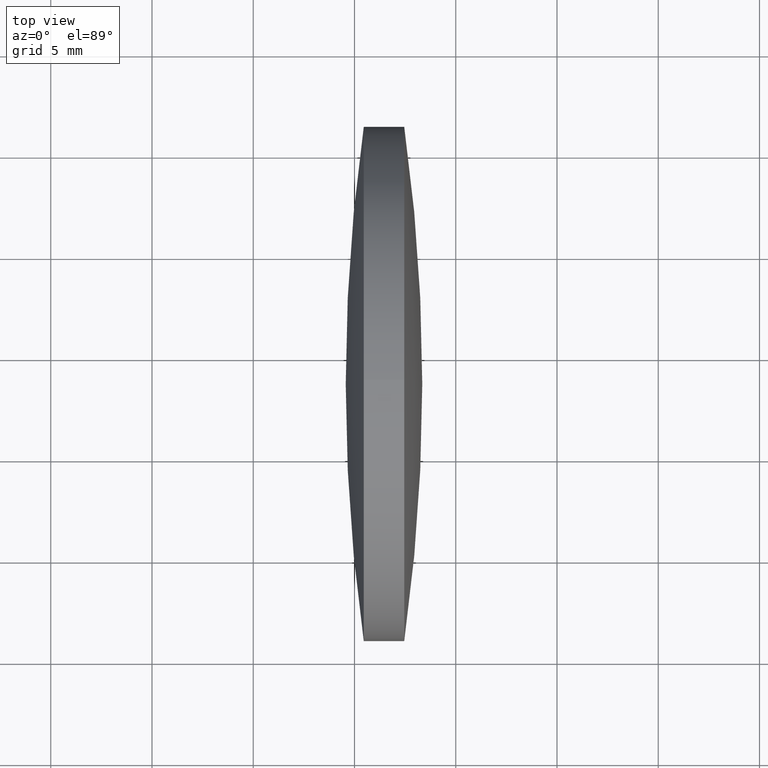
[diagram: clean part render]
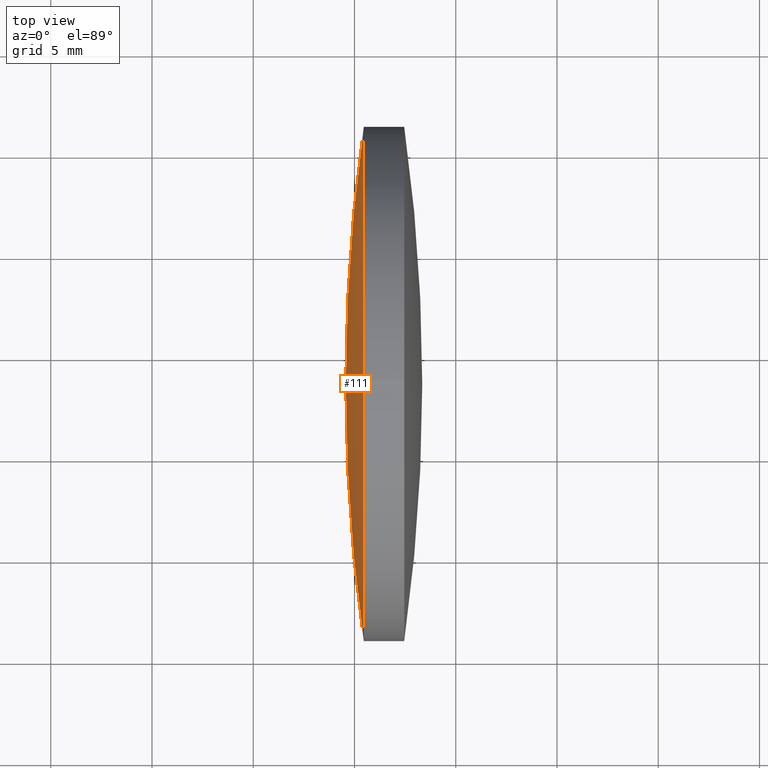
[diagram: same view with one face highlighted and labeled with its STEP entity id]
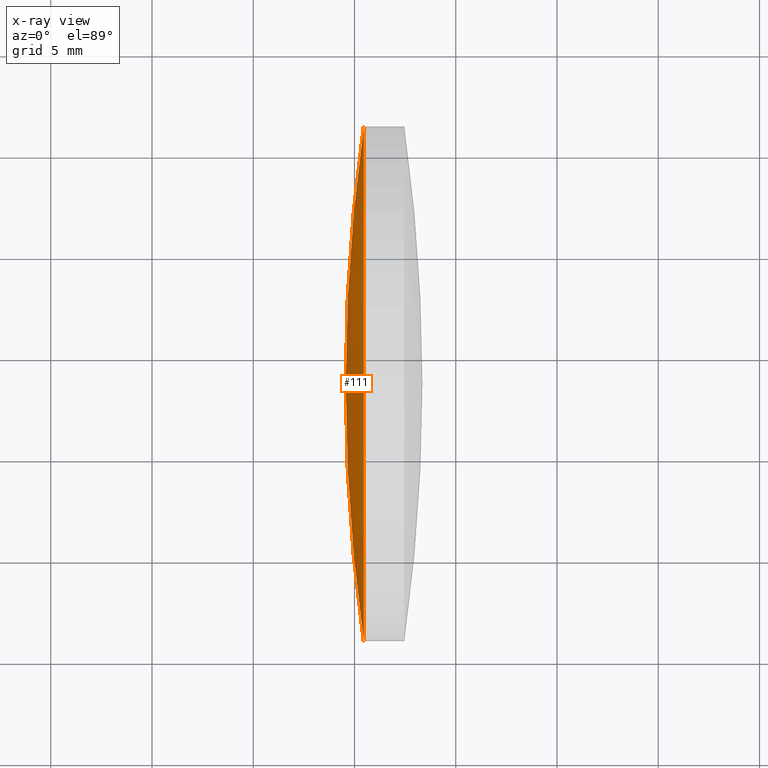
[diagram: x-ray of the same camera — body ghosted, the highlighted face saturated]
A machine part, top view. The second image highlights one B-rep face of the part: STEP entity #111.
The next image is the same camera in x-ray: the body ghosted, the highlighted face saturated — about 0% of this face is hidden behind the body in this view.
In plain terms, the highlighted spherical surface has radius 91.0484 mm.
Its self-contained STEP definition (entity closure, byte-faithful):
#2 = CARTESIAN_POINT ( 'NONE',  ( 85.45852234609111500, 48.61611302318478100, 0.0000000000000000000 ) ) ;
#28 = EDGE_CURVE ( 'NONE', #192, #169, #66, .T. ) ;
#36 = DIRECTION ( 'NONE',  ( 0.0000000000000000000, 0.0000000000000000000, 1.000000000000000000 ) ) ;
#39 = CARTESIAN_POINT ( 'NONE',  ( 175.6168209058729100, 48.61611302318473100, 0.0000000000000000000 ) ) ;
#49 = SPHERICAL_SURFACE ( 'NONE', #291, 91.04838713121036200 ) ;
#66 = CIRCLE ( 'NONE', #149, 91.04838713121036200 ) ;
#81 = CIRCLE ( 'NONE', #325, 12.69999999999999600 ) ;
#93 = DIRECTION ( 'NONE',  ( 0.0000000000000000000, 1.000000000000000000, 0.0000000000000000000 ) ) ;
#102 = FACE_OUTER_BOUND ( 'NONE', #248, .T. ) ;
#111 = ADVANCED_FACE ( 'NONE', ( #102 ), #49, .T. ) ;
#113 = CIRCLE ( 'NONE', #321, 12.69999999999999600 ) ;
#115 = ORIENTED_EDGE ( 'NONE', *, *, #236, .T. ) ;
#116 = CARTESIAN_POINT ( 'NONE',  ( 85.45852234609111500, 48.61611302318478100, 12.69999999999999600 ) ) ;
#130 = VERTEX_POINT ( 'NONE', #254 ) ;
#134 = DIRECTION ( 'NONE',  ( 0.0000000000000000000, 1.000000000000000000, 1.224646799147353200E-016 ) ) ;
#136 = CARTESIAN_POINT ( 'NONE',  ( 175.6168209058729100, 48.61611302318473100, 0.0000000000000000000 ) ) ;
#139 = EDGE_CURVE ( 'NONE', #251, #192, #113, .T. ) ;
#149 = AXIS2_PLACEMENT_3D ( 'NONE', #39, #231, #310 ) ;
#160 = CIRCLE ( 'NONE', #312, 91.04838713121036200 ) ;
#169 = VERTEX_POINT ( 'NONE', #244 ) ;
#180 = DIRECTION ( 'NONE',  ( -0.0000000000000000000, 0.0000000000000000000, -1.000000000000000000 ) ) ;
#186 = EDGE_CURVE ( 'NONE', #130, #169, #160, .T. ) ;
#191 = DIRECTION ( 'NONE',  ( 0.0000000000000000000, 0.0000000000000000000, 1.000000000000000000 ) ) ;
#192 = VERTEX_POINT ( 'NONE', #246 ) ;
#200 = DIRECTION ( 'NONE',  ( -1.000000000000000000, -0.0000000000000000000, -0.0000000000000000000 ) ) ;
#208 = ORIENTED_EDGE ( 'NONE', *, *, #28, .T. ) ;
#211 = DIRECTION ( 'NONE',  ( 0.0000000000000000000, 1.224646799147353200E-016, -1.000000000000000000 ) ) ;
#226 = CARTESIAN_POINT ( 'NONE',  ( 85.45852234609111500, 48.61611302318478100, 0.0000000000000000000 ) ) ;
#231 = DIRECTION ( 'NONE',  ( -0.0000000000000000000, 0.0000000000000000000, 1.000000000000000000 ) ) ;
#236 = EDGE_CURVE ( 'NONE', #130, #251, #81, .T. ) ;
#244 = CARTESIAN_POINT ( 'NONE',  ( 84.56843377466255200, 48.61611302318473100, 0.0000000000000000000 ) ) ;
#246 = CARTESIAN_POINT ( 'NONE',  ( 85.45852234609111500, 61.31611302318471200, 0.0000000000000000000 ) ) ;
#247 = DIRECTION ( 'NONE',  ( -1.000000000000000000, -0.0000000000000000000, -0.0000000000000000000 ) ) ;
#248 = EDGE_LOOP ( 'NONE', ( #295, #115, #260, #208 ) ) ;
#251 = VERTEX_POINT ( 'NONE', #116 ) ;
#254 = CARTESIAN_POINT ( 'NONE',  ( 85.45852234609111500, 35.91611302318479900, -1.555301434917130000E-015 ) ) ;
#260 = ORIENTED_EDGE ( 'NONE', *, *, #139, .T. ) ;
#283 = CARTESIAN_POINT ( 'NONE',  ( 175.6168209058729100, 48.61611302318473100, 0.0000000000000000000 ) ) ;
#291 = AXIS2_PLACEMENT_3D ( 'NONE', #283, #180, #93 ) ;
#295 = ORIENTED_EDGE ( 'NONE', *, *, #186, .F. ) ;
#310 = DIRECTION ( 'NONE',  ( 1.000000000000000000, 0.0000000000000000000, 0.0000000000000000000 ) ) ;
#312 = AXIS2_PLACEMENT_3D ( 'NONE', #136, #211, #134 ) ;
#321 = AXIS2_PLACEMENT_3D ( 'NONE', #226, #200, #36 ) ;
#325 = AXIS2_PLACEMENT_3D ( 'NONE', #2, #247, #191 ) ;